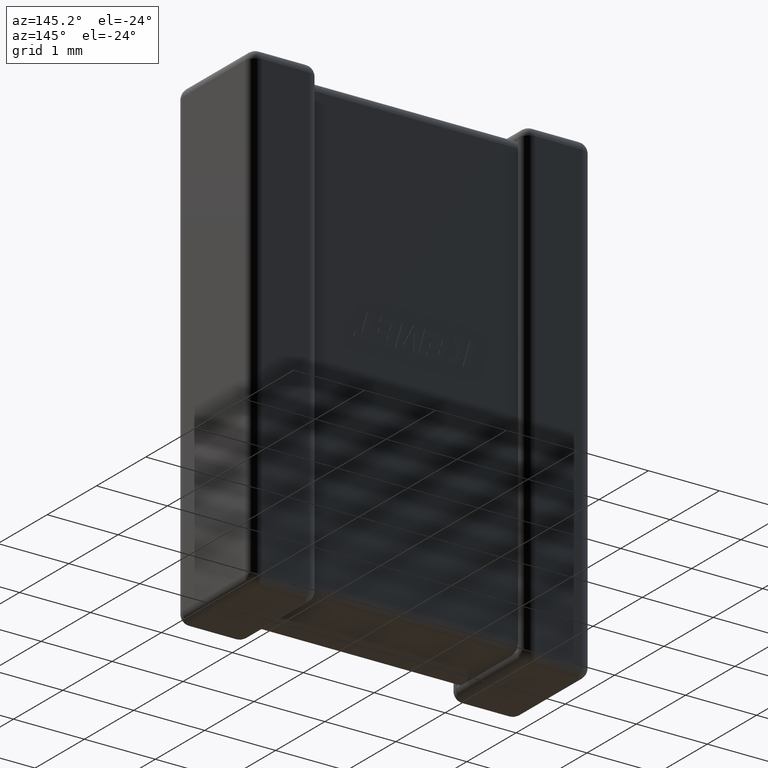
[diagram: clean part render]
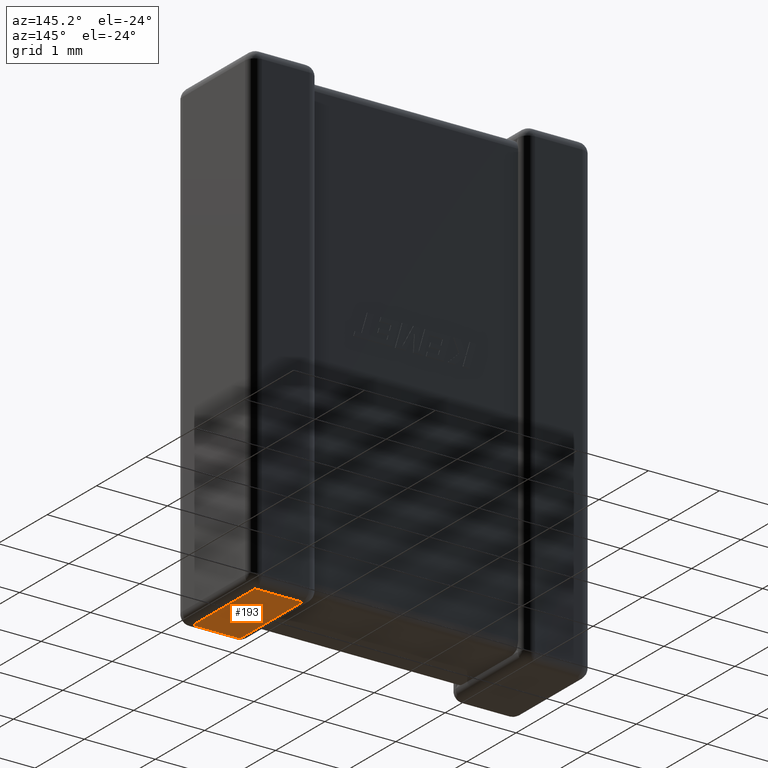
[diagram: same view with one face highlighted and labeled with its STEP entity id]
A machine part, auxiliary view. The second image highlights one B-rep face of the part: STEP entity #193.
In plain terms, the highlighted planar face has unit normal (0, 0, 1).
Its self-contained STEP definition (entity closure, byte-faithful):
#166 = VERTEX_POINT ( 'NONE', #4255 ) ;
#193 = ADVANCED_FACE ( 'NONE', ( #2614 ), #2165, .F. ) ;
#223 = LINE ( 'NONE', #3363, #2986 ) ;
#361 = LINE ( 'NONE', #4014, #3854 ) ;
#377 = DIRECTION ( 'NONE',  ( 0.0000000000000000000, 0.0000000000000000000, 1.000000000000000000 ) ) ;
#402 = ORIENTED_EDGE ( 'NONE', *, *, #3345, .T. ) ;
#412 = AXIS2_PLACEMENT_3D ( 'NONE', #2776, #377, #2543 ) ;
#546 = EDGE_LOOP ( 'NONE', ( #693, #2239, #402, #3543 ) ) ;
#693 = ORIENTED_EDGE ( 'NONE', *, *, #706, .T. ) ;
#706 = EDGE_CURVE ( 'NONE', #4277, #4061, #361, .T. ) ;
#788 = DIRECTION ( 'NONE',  ( 1.000000000000000000, -0.0000000000000000000, -0.0000000000000000000 ) ) ;
#951 = VECTOR ( 'NONE', #1236, 1000.000000000000000 ) ;
#1061 = DIRECTION ( 'NONE',  ( 0.0000000000000000000, 1.000000000000000000, 0.0000000000000000000 ) ) ;
#1158 = DIRECTION ( 'NONE',  ( -0.0000000000000000000, -1.000000000000000000, 0.0000000000000000000 ) ) ;
#1185 = LINE ( 'NONE', #3757, #951 ) ;
#1236 = DIRECTION ( 'NONE',  ( -1.000000000000000000, -0.0000000000000000000, 0.0000000000000000000 ) ) ;
#1427 = VECTOR ( 'NONE', #1061, 1000.000000000000000 ) ;
#1527 = CARTESIAN_POINT ( 'NONE',  ( 3.991439999999999900, 1.408559999999999600, -6.800000000000000700 ) ) ;
#1669 = EDGE_CURVE ( 'NONE', #166, #4277, #4403, .T. ) ;
#2165 = PLANE ( 'NONE',  #412 ) ;
#2239 = ORIENTED_EDGE ( 'NONE', *, *, #3258, .T. ) ;
#2249 = VERTEX_POINT ( 'NONE', #3284 ) ;
#2543 = DIRECTION ( 'NONE',  ( 1.000000000000000000, 0.0000000000000000000, -0.0000000000000000000 ) ) ;
#2614 = FACE_OUTER_BOUND ( 'NONE', #546, .T. ) ;
#2757 = CARTESIAN_POINT ( 'NONE',  ( 4.658559999999999600, 1.408559999999999600, -6.800000000000000700 ) ) ;
#2776 = CARTESIAN_POINT ( 'NONE',  ( 4.799999999999999800, 0.0000000000000000000, -6.800000000000000700 ) ) ;
#2840 = CARTESIAN_POINT ( 'NONE',  ( 3.991439999999999900, 0.0000000000000000000, -6.800000000000000700 ) ) ;
#2986 = VECTOR ( 'NONE', #1158, 1000.000000000000000 ) ;
#3258 = EDGE_CURVE ( 'NONE', #4061, #2249, #223, .T. ) ;
#3284 = CARTESIAN_POINT ( 'NONE',  ( 4.658559999999999600, 0.1414400000000000100, -6.800000000000000700 ) ) ;
#3345 = EDGE_CURVE ( 'NONE', #2249, #166, #1185, .T. ) ;
#3363 = CARTESIAN_POINT ( 'NONE',  ( 4.658559999999999600, 0.0000000000000000000, -6.800000000000000700 ) ) ;
#3543 = ORIENTED_EDGE ( 'NONE', *, *, #1669, .T. ) ;
#3757 = CARTESIAN_POINT ( 'NONE',  ( 4.799999999999999800, 0.1414400000000000100, -6.800000000000000700 ) ) ;
#3854 = VECTOR ( 'NONE', #788, 1000.000000000000000 ) ;
#4014 = CARTESIAN_POINT ( 'NONE',  ( 4.799999999999999800, 1.408559999999999600, -6.800000000000000700 ) ) ;
#4061 = VERTEX_POINT ( 'NONE', #2757 ) ;
#4255 = CARTESIAN_POINT ( 'NONE',  ( 3.991439999999999900, 0.1414400000000000100, -6.800000000000000700 ) ) ;
#4277 = VERTEX_POINT ( 'NONE', #1527 ) ;
#4403 = LINE ( 'NONE', #2840, #1427 ) ;